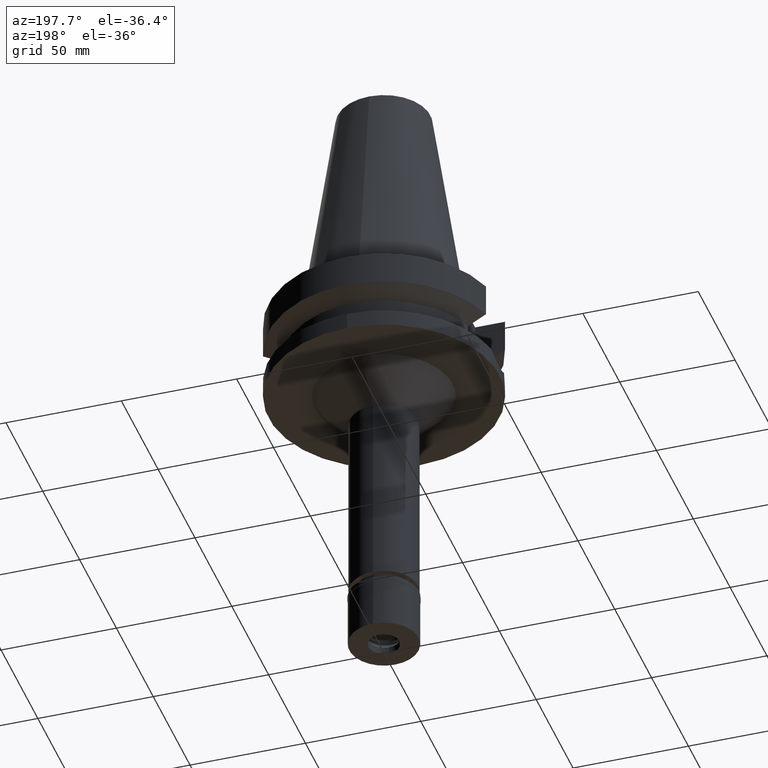
[diagram: clean part render]
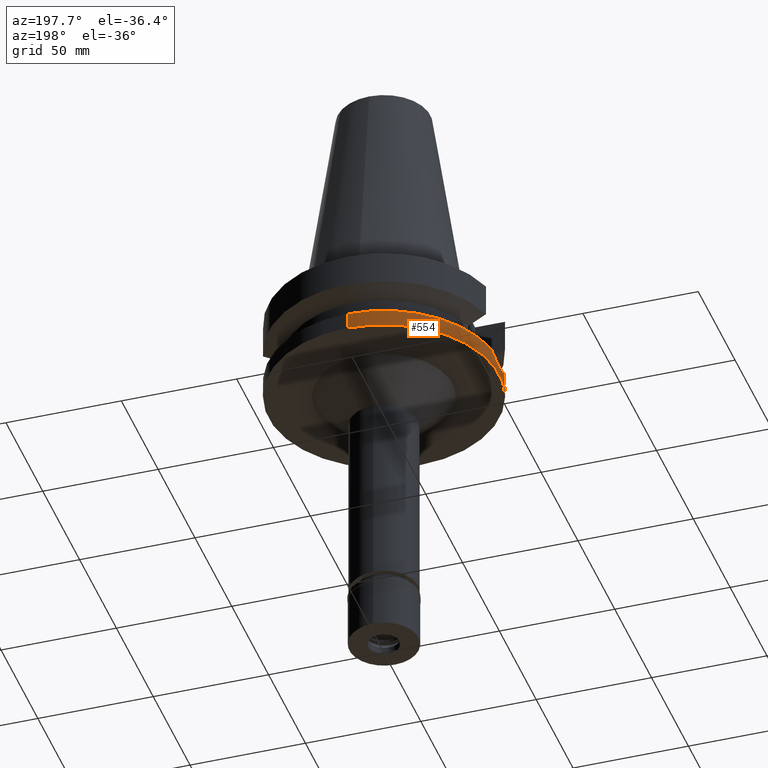
[diagram: same view with one face highlighted and labeled with its STEP entity id]
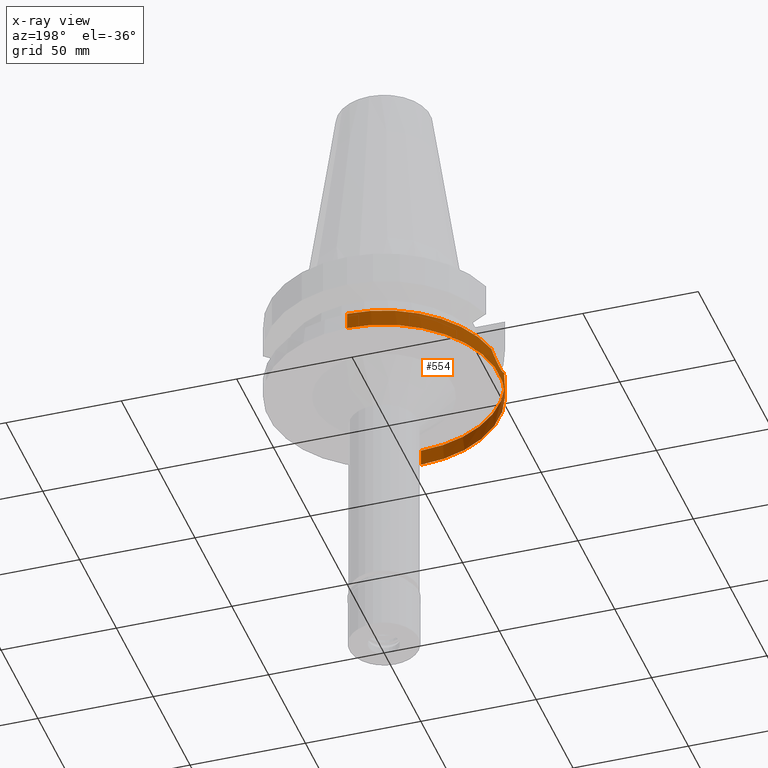
[diagram: x-ray of the same camera — body ghosted, the highlighted face saturated]
A machine part, auxiliary view. The second image highlights one B-rep face of the part: STEP entity #554.
The next image is the same camera in x-ray: the body ghosted, the highlighted face saturated — about 0% of this face is hidden behind the body in this view.
In plain terms, the highlighted cylindrical surface (partial cylindrical patch) has radius 50 mm, axis along (0, 0, -1).
Its self-contained STEP definition (entity closure, byte-faithful):
#48 = CARTESIAN_POINT ( 'NONE',  ( -49.37885247701439795, 7.862144688352008970, -31.32188303249954586 ) ) ;
#59 = ORIENTED_EDGE ( 'NONE', *, *, #1526, .T. ) ;
#102 = ORIENTED_EDGE ( 'NONE', *, *, #2078, .F. ) ;
#111 = CARTESIAN_POINT ( 'NONE',  ( 0.0000000000000000000, -50.00000000000000000, -30.73730776426999967 ) ) ;
#130 = AXIS2_PLACEMENT_3D ( 'NONE', #2398, #499, #1717 ) ;
#224 = CARTESIAN_POINT ( 'NONE',  ( -49.55645080413800230, -6.645196272246503888, -32.14835934795526384 ) ) ;
#244 = VERTEX_POINT ( 'NONE', #2814 ) ;
#279 = CIRCLE ( 'NONE', #2210, 50.00000000000000000 ) ;
#316 = CARTESIAN_POINT ( 'NONE',  ( -49.55642839048494608, 6.645350892752903249, -32.14826596391018398 ) ) ;
#318 = DIRECTION ( 'NONE',  ( 0.0000000000000000000, 0.0000000000000000000, -1.000000000000000000 ) ) ;
#323 = VERTEX_POINT ( 'NONE', #3101 ) ;
#337 = CIRCLE ( 'NONE', #1099, 50.00000000000000000 ) ;
#353 = DIRECTION ( 'NONE',  ( 0.0000000000000000000, -1.000000000000000000, 0.0000000000000000000 ) ) ;
#401 = CARTESIAN_POINT ( 'NONE',  ( -49.75306724036597217, 4.963223256050332211, -33.00317556781734396 ) ) ;
#420 = CARTESIAN_POINT ( 'NONE',  ( -49.79134522950911901, -4.562917808995082147, -33.16259509177005782 ) ) ;
#437 = CARTESIAN_POINT ( 'NONE',  ( -49.75827387585056982, -4.921781670119271368, -33.02549376364902400 ) ) ;
#447 = DIRECTION ( 'NONE',  ( 0.0000000000000000000, 0.0000000000000000000, -1.000000000000000000 ) ) ;
#464 = CARTESIAN_POINT ( 'NONE',  ( -49.55867599780047072, -6.628592828950607085, -32.15838541684728114 ) ) ;
#492 = CARTESIAN_POINT ( 'NONE',  ( 0.0000000000000000000, 50.00000000000000000, -30.73730776426999967 ) ) ;
#499 = DIRECTION ( 'NONE',  ( 0.0000000000000000000, 0.0000000000000000000, 1.000000000000000000 ) ) ;
#524 = CARTESIAN_POINT ( 'NONE',  ( -49.26250064874000145, 8.556052234130000045, -30.73730776426999967 ) ) ;
#545 = CARTESIAN_POINT ( 'NONE',  ( -49.52345606494701968, 6.887109231261083764, -31.99909553077886315 ) ) ;
#554 = ADVANCED_FACE ( 'NONE', ( #1569 ), #2773, .T. ) ;
#558 = CARTESIAN_POINT ( 'NONE',  ( -49.55310733094321307, 6.670070396100189036, -32.13329829196710818 ) ) ;
#584 = VERTEX_POINT ( 'NONE', #111 ) ;
#615 = CARTESIAN_POINT ( 'NONE',  ( -49.78008232297319324, 4.684409442887430330, -33.11588758411014766 ) ) ;
#634 = CARTESIAN_POINT ( 'NONE',  ( -49.64886371716459479, 5.925076880531229051, -32.55913415086271101 ) ) ;
#656 = CARTESIAN_POINT ( 'NONE',  ( -49.59426852412781983, -6.357723774046155185, -32.31781328744132509 ) ) ;
#703 = CARTESIAN_POINT ( 'NONE',  ( -49.61096464788644766, -6.225456152205641303, -32.39171795653864194 ) ) ;
#718 = VERTEX_POINT ( 'NONE', #2804 ) ;
#757 = CARTESIAN_POINT ( 'NONE',  ( -49.26250064874000145, -8.556052234130000045, -30.73730776426999967 ) ) ;
#897 = CARTESIAN_POINT ( 'NONE',  ( -49.81871769260416016, -4.255133180385602287, -33.27576126228842668 ) ) ;
#935 = CARTESIAN_POINT ( 'NONE',  ( 0.0000000000000000000, -50.00000000000000000, -38.00000000000000000 ) ) ;
#940 = CARTESIAN_POINT ( 'NONE',  ( -49.99935165422309069, -0.7784239453043507728, -33.99781837041186350 ) ) ;
#953 = ORIENTED_EDGE ( 'NONE', *, *, #1475, .T. ) ;
#1018 = EDGE_CURVE ( 'NONE', #584, #1297, #279, .T. ) ;
#1046 = LINE ( 'NONE', #2010, #1395 ) ;
#1099 = AXIS2_PLACEMENT_3D ( 'NONE', #2652, #447, #1214 ) ;
#1116 = CARTESIAN_POINT ( 'NONE',  ( -49.70802902525946365, 5.397483290814350632, -32.81309430012152006 ) ) ;
#1130 = CARTESIAN_POINT ( 'NONE',  ( -49.78701911213660480, 4.609908264406296752, -33.14467182154794500 ) ) ;
#1156 = CARTESIAN_POINT ( 'NONE',  ( -49.90695299040540789, -3.064054276236238827, -33.63563523818808676 ) ) ;
#1203 = CARTESIAN_POINT ( 'NONE',  ( -49.55496529461198918, -6.656265981409509536, -32.14166343317353380 ) ) ;
#1214 = DIRECTION ( 'NONE',  ( -0.9852500129747439050, 0.1711210446826074982, 0.0000000000000000000 ) ) ;
#1283 = ORIENTED_EDGE ( 'NONE', *, *, #1018, .T. ) ;
#1294 = CARTESIAN_POINT ( 'NONE',  ( -49.60515397012881778, 6.281699428897966619, -32.36773838267949088 ) ) ;
#1297 = VERTEX_POINT ( 'NONE', #1438 ) ;
#1395 = VECTOR ( 'NONE', #2848, 1000.000000000000000 ) ;
#1412 = CARTESIAN_POINT ( 'NONE',  ( -49.79013702930679131, -4.576075037514100607, -33.15758772691396672 ) ) ;
#1435 = EDGE_CURVE ( 'NONE', #718, #244, #337, .T. ) ;
#1438 = CARTESIAN_POINT ( 'NONE',  ( -49.26250064874000145, -8.556052234130000045, -30.73730776426999967 ) ) ;
#1458 = DIRECTION ( 'NONE',  ( 0.0000000000000000000, 2.152361642122000014E-14, -1.000000000000000000 ) ) ;
#1475 = EDGE_CURVE ( 'NONE', #244, #323, #2674, .T. ) ;
#1496 = CARTESIAN_POINT ( 'NONE',  ( -49.45252181852619344, 7.379311469613440977, -31.67177590125783837 ) ) ;
#1516 = CARTESIAN_POINT ( 'NONE',  ( -49.54064746246379514, 6.762057736149406750, -32.07703431477949607 ) ) ;
#1522 = CARTESIAN_POINT ( 'NONE',  ( -49.55404929939216885, -6.663081176448208076, -32.13753266288810551 ) ) ;
#1526 = EDGE_CURVE ( 'NONE', #323, #2718, #2941, .T. ) ;
#1530 = CARTESIAN_POINT ( 'NONE',  ( -49.55485633503610643, 6.657059842483701750, -32.14118191438673477 ) ) ;
#1534 = B_SPLINE_CURVE_WITH_KNOTS ( 'NONE', 3,
 ( #524, #2232, #48, #1496, #1986, #2969, #545, #1516, #2741, #558, #1530, #2497, #316, #1294, #634, #1116, #1832, #401, #2576, #615, #1130, #2293, #3077, #2047, #1868, #1820, #2789, #1629, #2310, #2592, #1919, #2595, #2146, #2362, #2097, #940, #2347, #1649, #1156, #1668, #2913, #897, #1874, #2878, #1680, #420, #1412, #437, #2900, #2851, #2118, #703, #656, #2644, #3102, #464, #224, #1203, #1522, #2256, #2223, #757 ),
 .UNSPECIFIED., .F., .F.,
 ( 4, 2, 2, 1, 1, 1, 1, 2, 2, 2, 2, 1, 1, 1, 2, 2, 2, 2, 1, 1, 1, 2, 2, 2, 2, 1, 1, 1, 1, 2, 2, 2, 2, 1, 1, 1, 1, 2, 2, 4 ),
 ( 0.0000000000000000000, 0.06250000000001001976, 0.09375000000001514067, 0.1093750000000174305, 0.1171875000000185962, 0.1210937500000187628, 0.1230468750000187628, 0.1240234375000188460, 0.1250000000000189015, 0.1875000000000209277, 0.2187500000000216216, 0.2343750000000220379, 0.2421875000000223155, 0.2460937500000225930, 0.2480468750000227596, 0.2500000000000228706, 0.3750000000000311418, 0.4375000000000353606, 0.4687500000000374700, 0.4843750000000385247, 0.4921875000000390243, 0.4960937500000393574, 0.5000000000000396350, 0.6250000000000480727, 0.6875000000000524025, 0.7187500000000545120, 0.7343750000000555112, 0.7421875000000560663, 0.7460937500000563993, 0.7480468750000566214, 0.7500000000000568434, 0.8125000000000554001, 0.8437500000000547340, 0.8593750000000547340, 0.8671875000000546230, 0.8710937500000542899, 0.8730468750000541789, 0.8740234375000538458, 0.8750000000000535127, 1.000000000000000000 ),
 .UNSPECIFIED. ) ;
#1569 = FACE_OUTER_BOUND ( 'NONE', #2198, .T. ) ;
#1581 = EDGE_CURVE ( 'NONE', #584, #2718, #1046, .T. ) ;
#1629 = CARTESIAN_POINT ( 'NONE',  ( -49.97920013495805591, 1.472795262818730633, -33.92099889261719881 ) ) ;
#1649 = CARTESIAN_POINT ( 'NONE',  ( -49.92883535255353422, -2.681505937334391909, -33.72308165370184696 ) ) ;
#1668 = CARTESIAN_POINT ( 'NONE',  ( -49.86764686233802024, -3.636664091885325689, -33.47624956180886358 ) ) ;
#1680 = CARTESIAN_POINT ( 'NONE',  ( -49.79350631851765030, -4.539276377428006271, -33.17154855830921178 ) ) ;
#1717 = DIRECTION ( 'NONE',  ( 0.0000000000000000000, 1.000000000000000000, 0.0000000000000000000 ) ) ;
#1725 = ORIENTED_EDGE ( 'NONE', *, *, #1435, .T. ) ;
#1820 = CARTESIAN_POINT ( 'NONE',  ( -49.91487582327795991, 3.004850456663109792, -33.66796213036081298 ) ) ;
#1832 = CARTESIAN_POINT ( 'NONE',  ( -49.72668424254793962, 5.222831057962758372, -32.89222978243837758 ) ) ;
#1844 = DIRECTION ( 'NONE',  ( 0.0000000000000000000, 0.0000000000000000000, -1.000000000000000000 ) ) ;
#1868 = CARTESIAN_POINT ( 'NONE',  ( -49.86308249898092981, 3.775850016989693358, -33.45954281403894726 ) ) ;
#1874 = CARTESIAN_POINT ( 'NONE',  ( -49.80418093014225178, -4.420986045154143618, -33.21572998614865924 ) ) ;
#1919 = CARTESIAN_POINT ( 'NONE',  ( -49.99918878542030143, 0.2915256917742590770, -33.99728939608991141 ) ) ;
#1986 = CARTESIAN_POINT ( 'NONE',  ( -49.47556776239743925, 7.223238672069536292, -31.77919332621900850 ) ) ;
#2010 = CARTESIAN_POINT ( 'NONE',  ( 0.0000000000000000000, -50.00000000000000000, -30.73730776426999967 ) ) ;
#2047 = CARTESIAN_POINT ( 'NONE',  ( -49.79275732135700849, 4.547483021842069206, -33.16844661964969276 ) ) ;
#2078 = EDGE_CURVE ( 'NONE', #718, #1297, #1534, .T. ) ;
#2097 = CARTESIAN_POINT ( 'NONE',  ( -49.99991625534298834, -0.01371456486334062495, -34.00001357600834950 ) ) ;
#2108 = VECTOR ( 'NONE', #1458, 1000.000000000000000 ) ;
#2118 = CARTESIAN_POINT ( 'NONE',  ( -49.64357081501887592, -5.961532523893725788, -32.53519818168097544 ) ) ;
#2121 = ORIENTED_EDGE ( 'NONE', *, *, #1581, .F. ) ;
#2146 = CARTESIAN_POINT ( 'NONE',  ( -49.99988398040253657, 0.05792329654729962141, -33.99989059424408566 ) ) ;
#2198 = EDGE_LOOP ( 'NONE', ( #1725, #953, #59, #2121, #1283, #102 ) ) ;
#2210 = AXIS2_PLACEMENT_3D ( 'NONE', #2585, #1844, #2633 ) ;
#2223 = CARTESIAN_POINT ( 'NONE',  ( -49.38319382117252587, -7.861146765730899766, -31.35746596004285180 ) ) ;
#2232 = CARTESIAN_POINT ( 'NONE',  ( -49.32369756947588257, 8.203703596582002433, -31.05175613931062273 ) ) ;
#2256 = CARTESIAN_POINT ( 'NONE',  ( -49.48018584307902756, -7.212056196407300668, -31.80433119641738671 ) ) ;
#2293 = CARTESIAN_POINT ( 'NONE',  ( -49.78995452580660697, 4.578044775696945123, -33.15683700959711189 ) ) ;
#2310 = CARTESIAN_POINT ( 'NONE',  ( -49.99187023690484466, 0.9036077942396694151, -33.96960422963758930 ) ) ;
#2347 = CARTESIAN_POINT ( 'NONE',  ( -49.98151726930754535, -1.537017213526419734, -33.93129506488985925 ) ) ;
#2362 = CARTESIAN_POINT ( 'NONE',  ( -49.99991736554095922, 0.01130191162826824774, -34.00001617349640526 ) ) ;
#2398 = CARTESIAN_POINT ( 'NONE',  ( 0.0000000000000000000, 2.628581889689999696E-14, -38.00000000000000000 ) ) ;
#2497 = CARTESIAN_POINT ( 'NONE',  ( -49.55601938756296221, 6.648398653620305687, -32.14642309863034342 ) ) ;
#2499 = CARTESIAN_POINT ( 'NONE',  ( 0.0000000000000000000, 2.628581889689999696E-14, 114.6400000000000006 ) ) ;
#2576 = CARTESIAN_POINT ( 'NONE',  ( -49.76585878224630477, 4.834011012995396150, -33.05670933666519318 ) ) ;
#2585 = CARTESIAN_POINT ( 'NONE',  ( 0.0000000000000000000, 0.0000000000000000000, -30.73730776426999967 ) ) ;
#2592 = CARTESIAN_POINT ( 'NONE',  ( -49.99656935717350592, 0.6200430176134278382, -33.98744614799777253 ) ) ;
#2595 = CARTESIAN_POINT ( 'NONE',  ( -49.99978277986036090, 0.1279040286100652790, -33.99951180098898362 ) ) ;
#2633 = DIRECTION ( 'NONE',  ( 0.0000000000000000000, -1.000000000000000000, 0.0000000000000000000 ) ) ;
#2644 = CARTESIAN_POINT ( 'NONE',  ( -49.57410189273925027, -6.512428102621732329, -32.22769848484448829 ) ) ;
#2652 = CARTESIAN_POINT ( 'NONE',  ( 0.0000000000000000000, 0.0000000000000000000, -30.73730776426999967 ) ) ;
#2674 = LINE ( 'NONE', #492, #2108 ) ;
#2718 = VERTEX_POINT ( 'NONE', #935 ) ;
#2741 = CARTESIAN_POINT ( 'NONE',  ( -49.54899534427468666, 6.700559330356560039, -32.11474970737054946 ) ) ;
#2773 = CYLINDRICAL_SURFACE ( 'NONE', #2981, 50.00000000000000000 ) ;
#2789 = CARTESIAN_POINT ( 'NONE',  ( -49.96639091844752301, 1.855009114791397851, -33.87135769975260757 ) ) ;
#2804 = CARTESIAN_POINT ( 'NONE',  ( -49.26250064874000145, 8.556052234130000045, -30.73730776426999967 ) ) ;
#2814 = CARTESIAN_POINT ( 'NONE',  ( 0.0000000000000000000, 50.00000000000000000, -30.73730776426999967 ) ) ;
#2848 = DIRECTION ( 'NONE',  ( 0.0000000000000000000, -2.250196262218000018E-14, -1.000000000000000000 ) ) ;
#2851 = CARTESIAN_POINT ( 'NONE',  ( -49.66426015259396820, -5.786401571707098235, -32.62507869605929756 ) ) ;
#2878 = CARTESIAN_POINT ( 'NONE',  ( -49.79673529073193805, -4.503806050066211597, -33.18492202727414053 ) ) ;
#2900 = CARTESIAN_POINT ( 'NONE',  ( -49.72318384377959433, -5.264673823399254715, -32.87839317436309727 ) ) ;
#2913 = CARTESIAN_POINT ( 'NONE',  ( -49.84637315209305086, -3.922661578063977750, -33.38950660958189331 ) ) ;
#2941 = CIRCLE ( 'NONE', #130, 50.00000000000000000 ) ;
#2969 = CARTESIAN_POINT ( 'NONE',  ( -49.50787092325534644, 6.997722634323591429, -31.92787014456149208 ) ) ;
#2981 = AXIS2_PLACEMENT_3D ( 'NONE', #2499, #318, #353 ) ;
#3077 = CARTESIAN_POINT ( 'NONE',  ( -49.79190313581518978, 4.556817177036327493, -33.16490932793018231 ) ) ;
#3101 = CARTESIAN_POINT ( 'NONE',  ( 0.0000000000000000000, 50.00000000000000000, -38.00000000000000000 ) ) ;
#3102 = CARTESIAN_POINT ( 'NONE',  ( -49.56384662196077784, -6.589859603490755724, -32.18165515071316207 ) ) ;